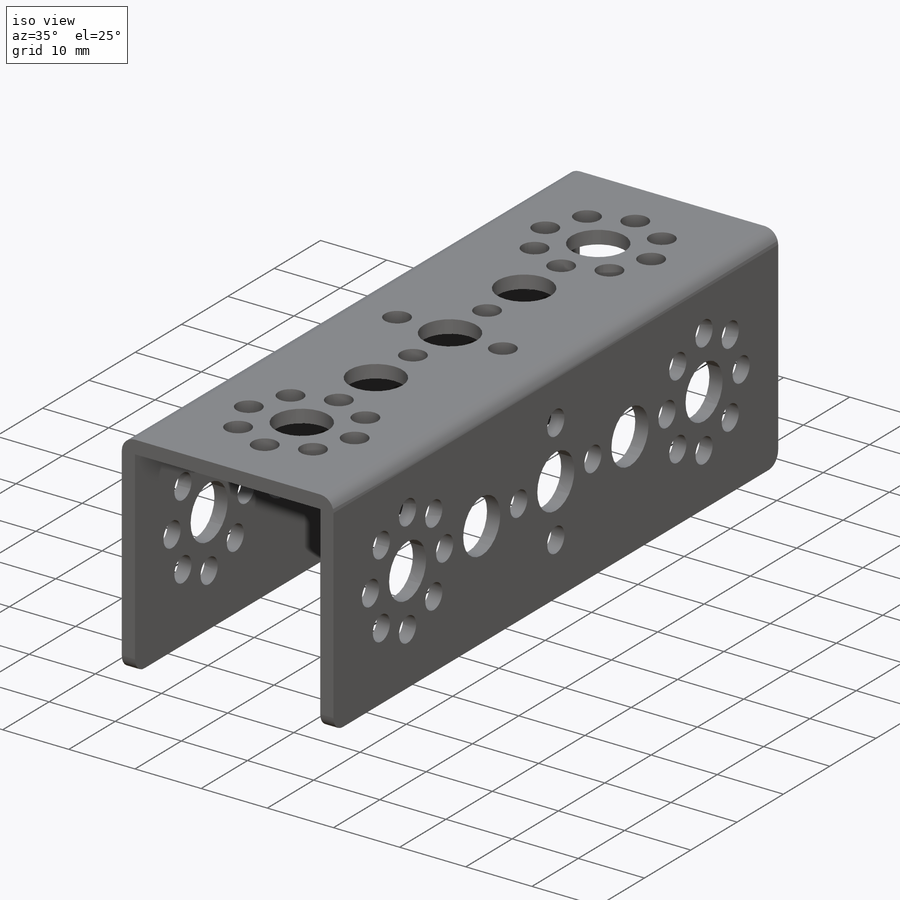
[diagram: iso view]
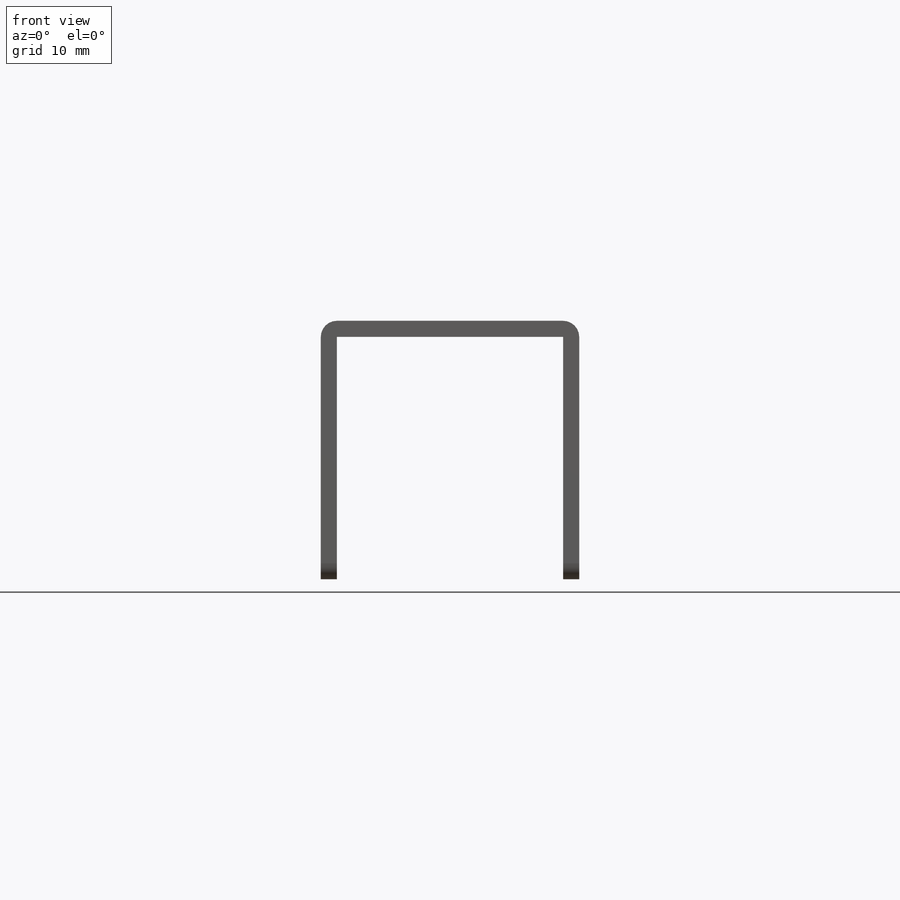
[diagram: front view]
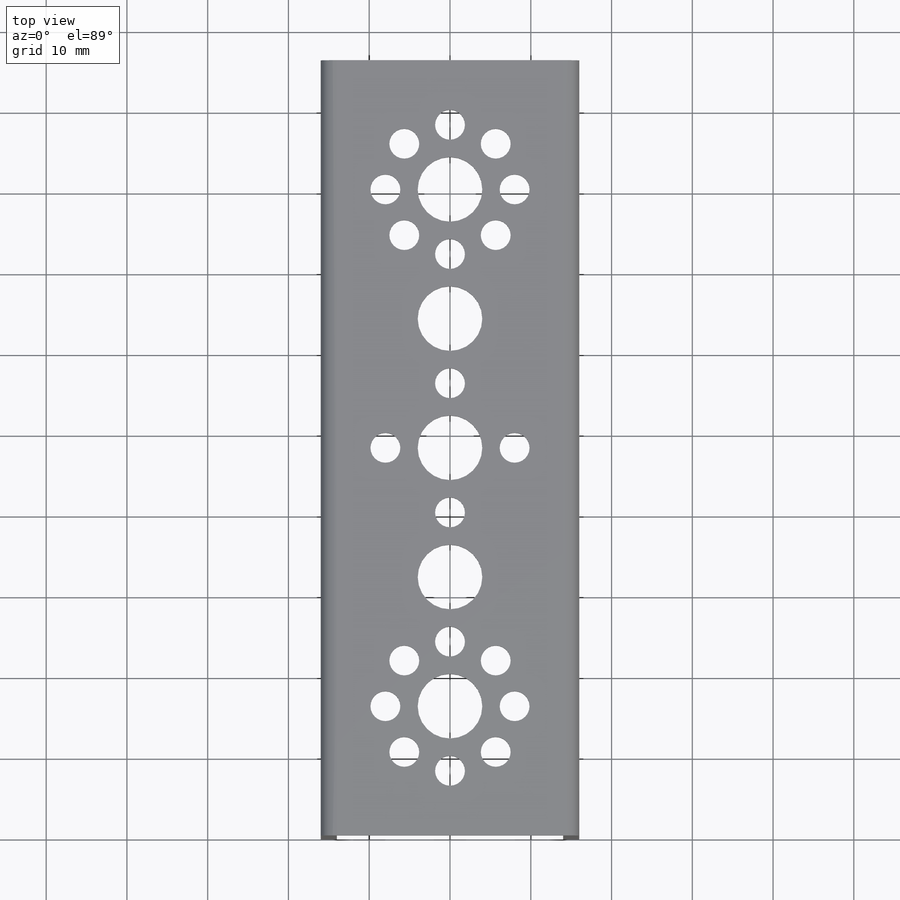
[diagram: top view]
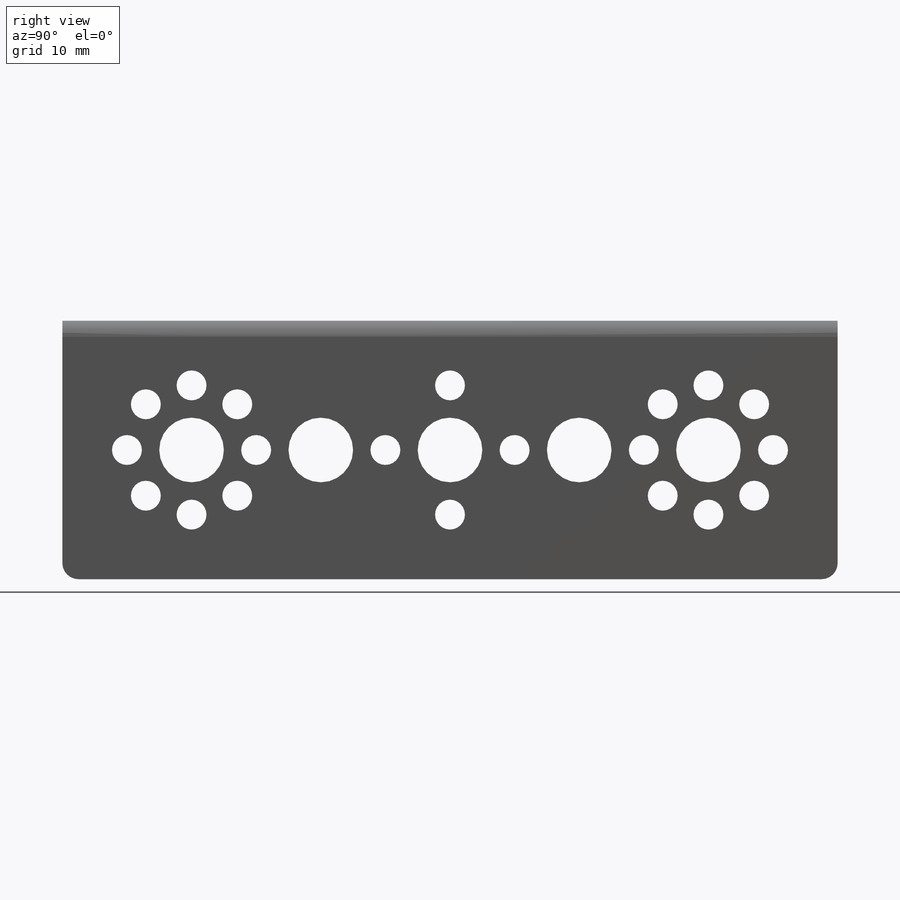
[diagram: right view]
SOLIDWORKS PART (.sldprt)
format: sldprt  version: not decoded by parser v0  size: 379,392 bytes
history: native  units: mm
features: sketch x3, extrude x2, cut_extrude x2, material x1, fillet x1 (+13 scaffold rows collapsed)
feature tree (22):
  scaffold x13  (default folders/planes/origin — collapsed)
  material  "Material <not specified>"
  sketch  "Sketch1"  dims[D1=32.0mm D2=32.0mm D3=2.0mm D4=2.0mm D5=32.0mm]
  extrude  "Boss-Extrude1"  Depth=96mm
  sketch  "Sketch2"  dims[c1.D1=16.0mm c1.D2=16.0mm c1.D3=16.0mm c1.D4=16.0mm c2.D1=32.0mm]
  cut_extrude  "Cut-Extrude1"  [1 undecoded]
  sketch  "Sketch3"
  extrude  "TETRIX 96 Pattern-3"  Depth=32mm
  cut_extrude  "Cut-Extrude2"  [1 undecoded]
  fillet  "Fillet1"  Radius=2mm
decode coverage: 5 of 8 modeling features carry decoded parameters
note: 2 parameter values undecoded
note: suppression state not decoded; provenance and decode notes live in map.json
